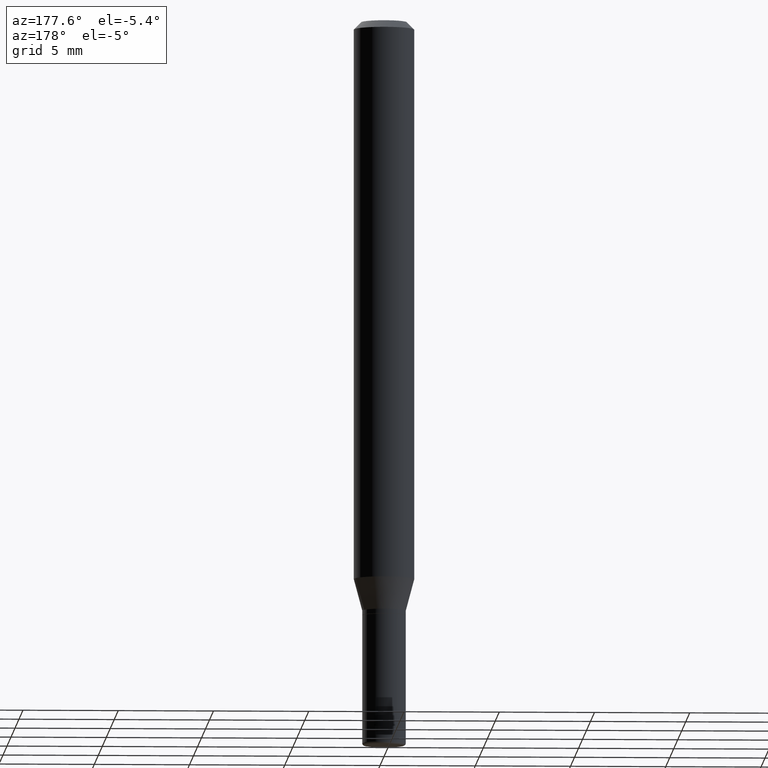
[diagram: clean part render]
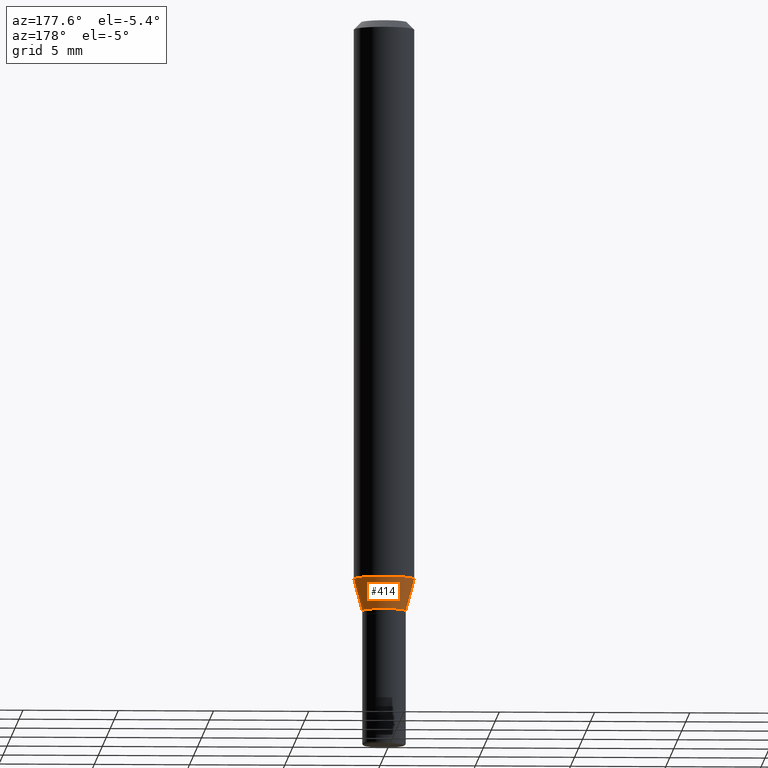
[diagram: same view with one face highlighted and labeled with its STEP entity id]
A machine part, auxiliary view. The second image highlights one B-rep face of the part: STEP entity #414.
In plain terms, the highlighted conical surface has half-angle 15 deg.
Its self-contained STEP definition (entity closure, byte-faithful):
#6 = CARTESIAN_POINT ( 'NONE',  ( 2.983471943545866110E-29, -4.259607233388636735E-15, -1.219999999999999751 ) ) ;
#28 = VECTOR ( 'NONE', #320, 39.37007874015748854 ) ;
#34 = DIRECTION ( 'NONE',  ( -2.445468806185136597E-29, 3.491481338843145583E-15, 1.000000000000000000 ) ) ;
#61 = CIRCLE ( 'NONE', #305, 0.04499999999999992895 ) ;
#65 = EDGE_CURVE ( 'NONE', #260, #232, #487, .T. ) ;
#87 = EDGE_CURVE ( 'NONE', #260, #135, #61, .T. ) ;
#112 = VECTOR ( 'NONE', #431, 39.37007874015748854 ) ;
#122 = CARTESIAN_POINT ( 'NONE',  ( 2.823756201468229950E-29, -4.031575482759414101E-15, -1.154689110867544111 ) ) ;
#135 = VERTEX_POINT ( 'NONE', #245 ) ;
#150 = CARTESIAN_POINT ( 'NONE',  ( 2.983471943545866110E-29, -4.259607233388636735E-15, -1.219999999999999751 ) ) ;
#151 = ORIENTED_EDGE ( 'NONE', *, *, #87, .T. ) ;
#155 = EDGE_LOOP ( 'NONE', ( #151, #309, #367, #440 ) ) ;
#164 = DIRECTION ( 'NONE',  ( 1.000000000000000000, -6.982962677686257244E-15, 0.000000000000000000 ) ) ;
#181 = DIRECTION ( 'NONE',  ( 1.000000000000000000, -6.982962677686257244E-15, 0.000000000000000000 ) ) ;
#196 = DIRECTION ( 'NONE',  ( 1.000000000000000000, -6.982962677686262766E-15, 0.000000000000000000 ) ) ;
#209 = CARTESIAN_POINT ( 'NONE',  ( 0.04499999999999992895, -4.573840553884517633E-15, -1.219999999999999751 ) ) ;
#232 = VERTEX_POINT ( 'NONE', #297 ) ;
#245 = CARTESIAN_POINT ( 'NONE',  ( -0.04499999999999992895, -3.763674637602971820E-15, -1.219999999999999751 ) ) ;
#260 = VERTEX_POINT ( 'NONE', #209 ) ;
#264 = AXIS2_PLACEMENT_3D ( 'NONE', #150, #266, #181 ) ;
#266 = DIRECTION ( 'NONE',  ( -2.445468806185136597E-29, 3.491481338843145583E-15, 1.000000000000000000 ) ) ;
#272 = CARTESIAN_POINT ( 'NONE',  ( -0.04499999999999992895, -3.939863002296592156E-15, -1.219999999999999751 ) ) ;
#281 = DIRECTION ( 'NONE',  ( -2.445468806185136597E-29, 3.491481338843145583E-15, 1.000000000000000000 ) ) ;
#283 = CARTESIAN_POINT ( 'NONE',  ( 0.04499999999999992895, -4.573840553884517633E-15, -1.219999999999999751 ) ) ;
#297 = CARTESIAN_POINT ( 'NONE',  ( 0.06250000000000000000, -4.468010650114805770E-15, -1.154689110867544111 ) ) ;
#305 = AXIS2_PLACEMENT_3D ( 'NONE', #6, #281, #164 ) ;
#309 = ORIENTED_EDGE ( 'NONE', *, *, #432, .T. ) ;
#311 = LINE ( 'NONE', #272, #112 ) ;
#320 = DIRECTION ( 'NONE',  ( 0.2588190451025205729, 1.565188264969627490E-15, 0.9659258262890682012 ) ) ;
#347 = CONICAL_SURFACE ( 'NONE', #264, 0.04499999999999992895, 0.2617993877991492968 ) ;
#367 = ORIENTED_EDGE ( 'NONE', *, *, #517, .F. ) ;
#386 = CARTESIAN_POINT ( 'NONE',  ( -0.06250000000000000000, -3.587486272909351485E-15, -1.154689110867544111 ) ) ;
#414 = ADVANCED_FACE ( 'NONE', ( #510 ), #347, .T. ) ;
#421 = CIRCLE ( 'NONE', #474, 0.06250000000000000000 ) ;
#431 = DIRECTION ( 'NONE',  ( -0.2588190451025205729, 5.211531920934544731E-15, 0.9659258262890682012 ) ) ;
#432 = EDGE_CURVE ( 'NONE', #135, #497, #311, .T. ) ;
#440 = ORIENTED_EDGE ( 'NONE', *, *, #65, .F. ) ;
#474 = AXIS2_PLACEMENT_3D ( 'NONE', #122, #34, #196 ) ;
#487 = LINE ( 'NONE', #283, #28 ) ;
#497 = VERTEX_POINT ( 'NONE', #386 ) ;
#510 = FACE_OUTER_BOUND ( 'NONE', #155, .T. ) ;
#517 = EDGE_CURVE ( 'NONE', #232, #497, #421, .T. ) ;